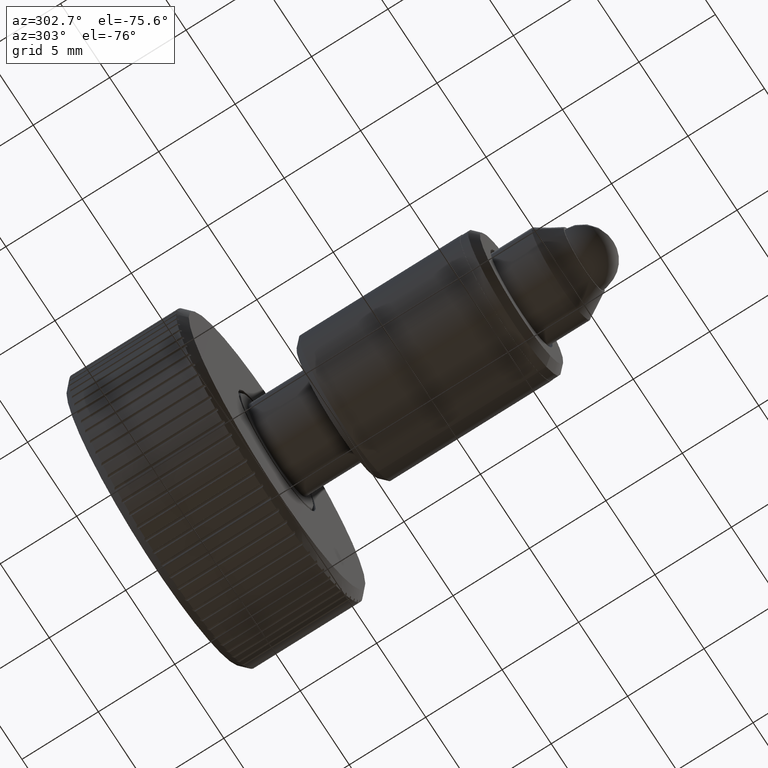
[diagram: clean part render]
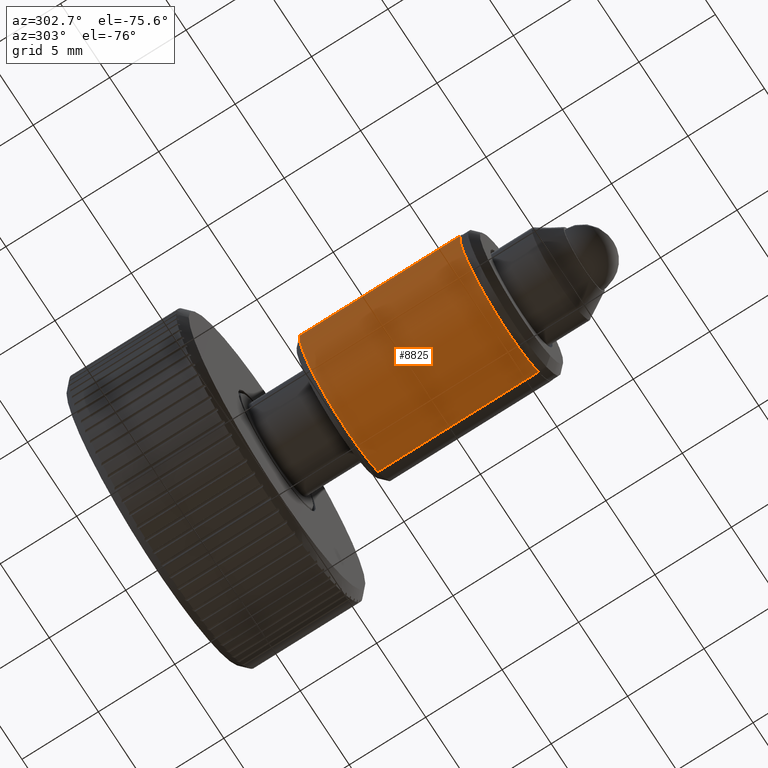
[diagram: same view with one face highlighted and labeled with its STEP entity id]
A machine part, auxiliary view. The second image highlights one B-rep face of the part: STEP entity #8825.
In plain terms, the highlighted cylindrical surface (partial cylindrical patch) has radius 4.75 mm, axis along (-0, 1, 0).
Its self-contained STEP definition (entity closure, byte-faithful):
#294 = VERTEX_POINT ( 'NONE', #2964 ) ;
#403 = CARTESIAN_POINT ( 'NONE',  ( -3.273587139653840500, 5.100000000000003200, 3.441820338003288800 ) ) ;
#1004 = VECTOR ( 'NONE', #5481, 1000.000000000000000 ) ;
#1919 = CARTESIAN_POINT ( 'NONE',  ( 3.273587139653757900, 15.60000000000002300, -3.441820338003299900 ) ) ;
#2031 = VERTEX_POINT ( 'NONE', #1919 ) ;
#2456 = ORIENTED_EDGE ( 'NONE', *, *, #9261, .T. ) ;
#2611 = EDGE_LOOP ( 'NONE', ( #10861, #2456, #6895, #9267 ) ) ;
#2934 = DIRECTION ( 'NONE',  ( 3.491481338843132200E-015, -1.000000000000000000, -1.230100298268891300E-029 ) ) ;
#2964 = CARTESIAN_POINT ( 'NONE',  ( -3.273587139653866700, 15.60000000000000000, 3.441820338003298600 ) ) ;
#3146 = EDGE_CURVE ( 'NONE', #11282, #3967, #9864, .T. ) ;
#3338 = LINE ( 'NONE', #6302, #1004 ) ;
#3374 = CIRCLE ( 'NONE', #5708, 4.749999999999997300 ) ;
#3394 = DIRECTION ( 'NONE',  ( 3.491481338843132200E-015, -1.000000000000000000, -1.228314036750835100E-029 ) ) ;
#3751 = CARTESIAN_POINT ( 'NONE',  ( 3.273587139653798300, 4.100000000000024500, -3.441820338003299000 ) ) ;
#3967 = VERTEX_POINT ( 'NONE', #4854 ) ;
#4854 = CARTESIAN_POINT ( 'NONE',  ( 3.273587139653784600, 5.100000000000025400, -3.441820338003307900 ) ) ;
#5260 = AXIS2_PLACEMENT_3D ( 'NONE', #5331, #6160, #5367 ) ;
#5331 = CARTESIAN_POINT ( 'NONE',  ( -1.431507348925672400E-014, 4.100000000000013000, -2.135904401604882200E-029 ) ) ;
#5367 = DIRECTION ( 'NONE',  ( 0.6891762399271188500, 2.373832125020895100E-015, -0.7245937553691159700 ) ) ;
#5481 = DIRECTION ( 'NONE',  ( -3.491481338843132200E-015, 1.000000000000000000, 1.230100298268891300E-029 ) ) ;
#5708 = AXIS2_PLACEMENT_3D ( 'NONE', #8171, #2934, #9036 ) ;
#6160 = DIRECTION ( 'NONE',  ( -3.491481338843132200E-015, 1.000000000000000000, 1.230100298268891300E-029 ) ) ;
#6302 = CARTESIAN_POINT ( 'NONE',  ( -3.273587139653827600, 4.100000000000002300, 3.441820338003298600 ) ) ;
#6482 = EDGE_CURVE ( 'NONE', #3967, #2031, #6617, .T. ) ;
#6617 = LINE ( 'NONE', #3751, #7432 ) ;
#6895 = ORIENTED_EDGE ( 'NONE', *, *, #8324, .T. ) ;
#7432 = VECTOR ( 'NONE', #8982, 1000.000000000000000 ) ;
#8149 = CYLINDRICAL_SURFACE ( 'NONE', #5260, 4.749999999999997300 ) ;
#8171 = CARTESIAN_POINT ( 'NONE',  ( -5.446710888595274200E-014, 15.60000000000001200, 1.201024902848736800E-028 ) ) ;
#8324 = EDGE_CURVE ( 'NONE', #294, #2031, #3374, .T. ) ;
#8614 = CARTESIAN_POINT ( 'NONE',  ( -1.780655482809986000E-014, 5.100000000000013900, -9.058041033359890300E-030 ) ) ;
#8825 = ADVANCED_FACE ( 'NONE', ( #9083 ), #8149, .T. ) ;
#8982 = DIRECTION ( 'NONE',  ( -3.491481338843132200E-015, 1.000000000000000000, 1.230100298268891300E-029 ) ) ;
#9036 = DIRECTION ( 'NONE',  ( -0.6891762399271188500, -2.556434596176348600E-015, 0.7245937553691159700 ) ) ;
#9083 = FACE_OUTER_BOUND ( 'NONE', #2611, .T. ) ;
#9261 = EDGE_CURVE ( 'NONE', #11282, #294, #3338, .T. ) ;
#9267 = ORIENTED_EDGE ( 'NONE', *, *, #6482, .F. ) ;
#9489 = DIRECTION ( 'NONE',  ( -0.6891762399271188500, -2.373832125020895100E-015, 0.7245937553691159700 ) ) ;
#9701 = AXIS2_PLACEMENT_3D ( 'NONE', #8614, #3394, #9489 ) ;
#9864 = CIRCLE ( 'NONE', #9701, 4.749999999999997300 ) ;
#10861 = ORIENTED_EDGE ( 'NONE', *, *, #3146, .F. ) ;
#11282 = VERTEX_POINT ( 'NONE', #403 ) ;